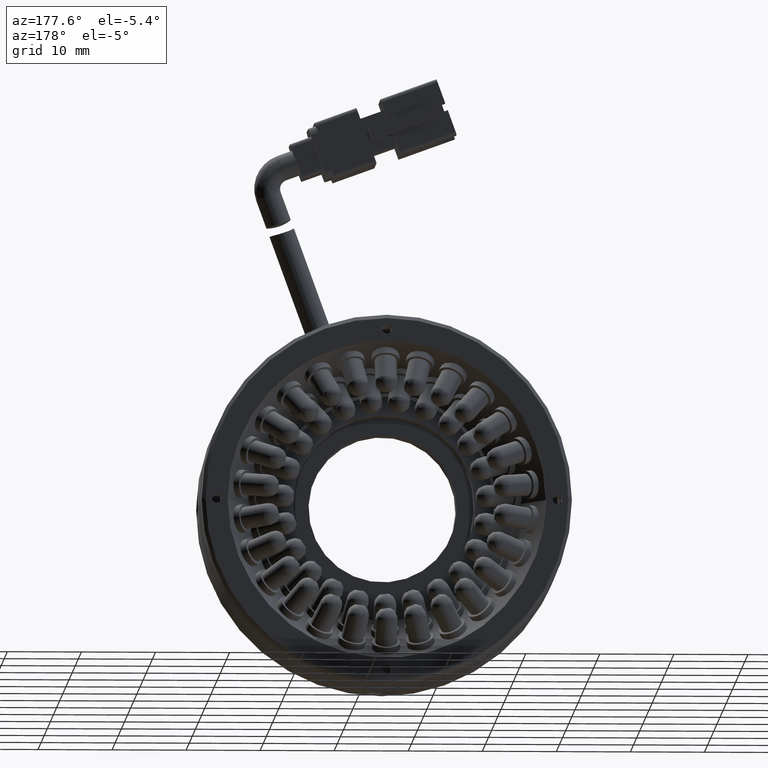
[diagram: clean part render]
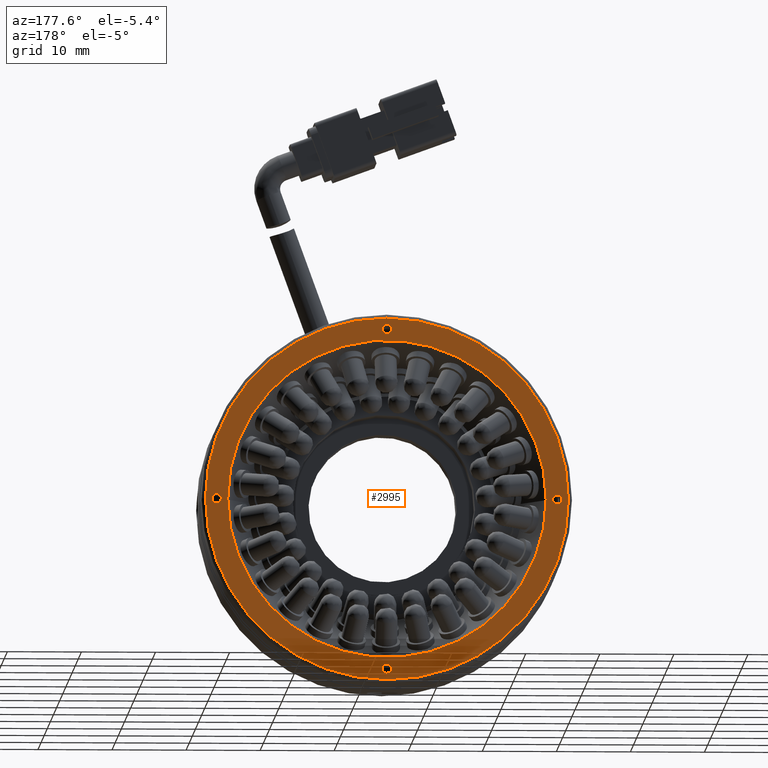
[diagram: same view with one face highlighted and labeled with its STEP entity id]
A machine part, auxiliary view. The second image highlights one B-rep face of the part: STEP entity #2995.
In plain terms, the highlighted planar face has unit normal (0, -1, 0).
Its self-contained STEP definition (entity closure, byte-faithful):
#528 = AXIS2_PLACEMENT_3D ( 'NONE', #32243, #8652, #36204 ) ;
#760 = VERTEX_POINT ( 'NONE', #28803 ) ;
#1111 = VERTEX_POINT ( 'NONE', #21407 ) ;
#1406 = CARTESIAN_POINT ( 'NONE',  ( -93.72635228848822900, 21.12753120665741900, -23.00000000000000000 ) ) ;
#2995 = ADVANCED_FACE ( 'NONE', ( #39938, #18928, #9789, #8481, #29488, #50145 ), #37236, .F. ) ;
#3200 = CIRCLE ( 'NONE', #22009, 0.6249999999999987800 ) ;
#5416 = DIRECTION ( 'NONE',  ( 0.0000000000000000000, 0.0000000000000000000, 1.000000000000000000 ) ) ;
#6185 = CARTESIAN_POINT ( 'NONE',  ( -93.72635228848822900, 21.12753120665741900, 1.734723475976778100E-017 ) ) ;
#6297 = DIRECTION ( 'NONE',  ( 1.040834085586084300E-016, -1.000000000000000000, -3.469446951953613600E-017 ) ) ;
#6337 = CIRCLE ( 'NONE', #48746, 0.6249999999999987800 ) ;
#6529 = DIRECTION ( 'NONE',  ( 0.0000000000000000000, 0.0000000000000000000, 1.000000000000000000 ) ) ;
#6701 = DIRECTION ( 'NONE',  ( 0.0000000000000000000, -1.000000000000000000, 0.0000000000000000000 ) ) ;
#6860 = CARTESIAN_POINT ( 'NONE',  ( -116.7263522884882400, 21.12753120665741900, 8.030407079339205500E-014 ) ) ;
#6880 = ORIENTED_EDGE ( 'NONE', *, *, #13075, .T. ) ;
#7035 = CARTESIAN_POINT ( 'NONE',  ( -69.22635228848821500, 21.12753120665742300, 1.734723475976778100E-017 ) ) ;
#7544 = CARTESIAN_POINT ( 'NONE',  ( -70.72635228848824300, 21.12753120665742700, -0.6250000000002397000 ) ) ;
#8378 = CIRCLE ( 'NONE', #24660, 0.6249999999999987800 ) ;
#8481 = FACE_BOUND ( 'NONE', #48564, .T. ) ;
#8652 = DIRECTION ( 'NONE',  ( 0.0000000000000000000, -1.000000000000000000, 0.0000000000000000000 ) ) ;
#9169 = CIRCLE ( 'NONE', #528, 0.6250000000000005600 ) ;
#9241 = CARTESIAN_POINT ( 'NONE',  ( -116.7263522884882400, 21.12753120665741900, 8.030407079339205500E-014 ) ) ;
#9532 = ORIENTED_EDGE ( 'NONE', *, *, #33196, .T. ) ;
#9789 = FACE_BOUND ( 'NONE', #42651, .T. ) ;
#10239 = DIRECTION ( 'NONE',  ( 1.000000000000000000, 1.416100796715759600E-016, 0.0000000000000000000 ) ) ;
#10504 = CIRCLE ( 'NONE', #49110, 0.6250000000000005600 ) ;
#10715 = CARTESIAN_POINT ( 'NONE',  ( -93.72635228848822900, 21.12753120665741900, 0.0000000000000000000 ) ) ;
#11659 = VERTEX_POINT ( 'NONE', #30950 ) ;
#11908 = CARTESIAN_POINT ( 'NONE',  ( -93.72635228848822900, 21.12753120665741900, -22.37500000000000000 ) ) ;
#13075 = EDGE_CURVE ( 'NONE', #46665, #43018, #24635, .T. ) ;
#13149 = DIRECTION ( 'NONE',  ( 0.0000000000000000000, 0.0000000000000000000, 1.000000000000000000 ) ) ;
#13234 = AXIS2_PLACEMENT_3D ( 'NONE', #36893, #36832, #36785 ) ;
#13326 = ORIENTED_EDGE ( 'NONE', *, *, #35627, .T. ) ;
#14392 = ORIENTED_EDGE ( 'NONE', *, *, #23505, .F. ) ;
#14632 = DIRECTION ( 'NONE',  ( -1.000000000000000000, -1.613696256722610900E-016, 0.0000000000000000000 ) ) ;
#14776 = EDGE_CURVE ( 'NONE', #38823, #39703, #17866, .T. ) ;
#15771 = ORIENTED_EDGE ( 'NONE', *, *, #38768, .T. ) ;
#16182 = CARTESIAN_POINT ( 'NONE',  ( -93.72635228848822900, 21.12753120665741900, 0.0000000000000000000 ) ) ;
#16607 = DIRECTION ( 'NONE',  ( 0.0000000000000000000, -1.000000000000000000, 0.0000000000000000000 ) ) ;
#16674 = VERTEX_POINT ( 'NONE', #7035 ) ;
#17151 = ORIENTED_EDGE ( 'NONE', *, *, #17196, .T. ) ;
#17171 = ORIENTED_EDGE ( 'NONE', *, *, #37728, .T. ) ;
#17196 = EDGE_CURVE ( 'NONE', #20239, #20840, #3200, .T. ) ;
#17866 = CIRCLE ( 'NONE', #31819, 0.6250000000000005600 ) ;
#18017 = CARTESIAN_POINT ( 'NONE',  ( -70.72635228848824300, 21.12753120665742700, -2.409122123801762900E-013 ) ) ;
#18928 = FACE_OUTER_BOUND ( 'NONE', #44452, .T. ) ;
#19741 = ORIENTED_EDGE ( 'NONE', *, *, #14776, .T. ) ;
#19882 = CIRCLE ( 'NONE', #22378, 0.6250000000000005600 ) ;
#20152 = DIRECTION ( 'NONE',  ( -1.000000000000000000, -1.613696256722610900E-016, 0.0000000000000000000 ) ) ;
#20239 = VERTEX_POINT ( 'NONE', #35456 ) ;
#20840 = VERTEX_POINT ( 'NONE', #23177 ) ;
#21407 = CARTESIAN_POINT ( 'NONE',  ( -93.72635228848822900, 21.12753120665741900, 23.62500000000000000 ) ) ;
#21990 = DIRECTION ( 'NONE',  ( 0.0000000000000000000, 0.0000000000000000000, 1.000000000000000000 ) ) ;
#22009 = AXIS2_PLACEMENT_3D ( 'NONE', #6860, #6701, #6529 ) ;
#22378 = AXIS2_PLACEMENT_3D ( 'NONE', #40279, #16607, #44133 ) ;
#23177 = CARTESIAN_POINT ( 'NONE',  ( -116.7263522884882400, 21.12753120665741900, 0.6250000000000791600 ) ) ;
#23505 = EDGE_CURVE ( 'NONE', #35671, #16674, #32771, .T. ) ;
#24635 = CIRCLE ( 'NONE', #48897, 0.6249999999999987800 ) ;
#24660 = AXIS2_PLACEMENT_3D ( 'NONE', #18017, #45524, #21990 ) ;
#26092 = DIRECTION ( 'NONE',  ( 0.0000000000000000000, 0.0000000000000000000, 1.000000000000000000 ) ) ;
#26257 = DIRECTION ( 'NONE',  ( 0.0000000000000000000, -1.000000000000000000, 0.0000000000000000000 ) ) ;
#26427 = CARTESIAN_POINT ( 'NONE',  ( -70.72635228848824300, 21.12753120665742700, -2.409122123801762900E-013 ) ) ;
#26475 = EDGE_CURVE ( 'NONE', #20840, #20239, #6337, .T. ) ;
#28803 = CARTESIAN_POINT ( 'NONE',  ( -93.72635228848822900, 21.12753120665741900, 22.37500000000000000 ) ) ;
#28993 = AXIS2_PLACEMENT_3D ( 'NONE', #6185, #33791, #10239 ) ;
#29082 = DIRECTION ( 'NONE',  ( 0.0000000000000000000, -1.000000000000000000, 0.0000000000000000000 ) ) ;
#29488 = FACE_BOUND ( 'NONE', #43171, .T. ) ;
#29983 = CARTESIAN_POINT ( 'NONE',  ( -93.72635228848822900, 21.12753120665741900, 1.734723475976778100E-017 ) ) ;
#30062 = AXIS2_PLACEMENT_3D ( 'NONE', #10715, #38252, #14632 ) ;
#30950 = CARTESIAN_POINT ( 'NONE',  ( -115.2263522884882400, 21.12753120665741600, 0.0000000000000000000 ) ) ;
#31165 = AXIS2_PLACEMENT_3D ( 'NONE', #16182, #43719, #20152 ) ;
#31819 = AXIS2_PLACEMENT_3D ( 'NONE', #40736, #40559, #40377 ) ;
#32160 = ORIENTED_EDGE ( 'NONE', *, *, #49766, .F. ) ;
#32243 = CARTESIAN_POINT ( 'NONE',  ( -93.72635228848822900, 21.12753120665741900, 23.00000000000000000 ) ) ;
#32771 = CIRCLE ( 'NONE', #40569, 24.50000000000002100 ) ;
#32817 = CARTESIAN_POINT ( 'NONE',  ( -72.22635228848822900, 21.12753120665742300, 2.632990618166810000E-015 ) ) ;
#33196 = EDGE_CURVE ( 'NONE', #760, #1111, #19882, .T. ) ;
#33791 = DIRECTION ( 'NONE',  ( 1.040834085586084300E-016, -1.000000000000000000, -3.469446951953613600E-017 ) ) ;
#33826 = CIRCLE ( 'NONE', #28993, 24.50000000000002100 ) ;
#33830 = ORIENTED_EDGE ( 'NONE', *, *, #40223, .F. ) ;
#33896 = DIRECTION ( 'NONE',  ( 1.000000000000000000, 1.416100796715759600E-016, 0.0000000000000000000 ) ) ;
#35066 = VERTEX_POINT ( 'NONE', #32817 ) ;
#35174 = ORIENTED_EDGE ( 'NONE', *, *, #46509, .F. ) ;
#35456 = CARTESIAN_POINT ( 'NONE',  ( -116.7263522884882400, 21.12753120665741900, -0.6249999999999185100 ) ) ;
#35627 = EDGE_CURVE ( 'NONE', #1111, #760, #9169, .T. ) ;
#35671 = VERTEX_POINT ( 'NONE', #40357 ) ;
#36204 = DIRECTION ( 'NONE',  ( 0.0000000000000000000, 0.0000000000000000000, 1.000000000000000000 ) ) ;
#36785 = DIRECTION ( 'NONE',  ( 1.000000000000000000, 1.224646799147351700E-016, 0.0000000000000000000 ) ) ;
#36786 = DIRECTION ( 'NONE',  ( 0.0000000000000000000, -1.000000000000000000, 0.0000000000000000000 ) ) ;
#36832 = DIRECTION ( 'NONE',  ( 1.224646799147351700E-016, -1.000000000000000000, 0.0000000000000000000 ) ) ;
#36893 = CARTESIAN_POINT ( 'NONE',  ( -68.72635228848822900, 21.12753120665742700, 0.0000000000000000000 ) ) ;
#37236 = PLANE ( 'NONE',  #13234 ) ;
#37728 = EDGE_CURVE ( 'NONE', #39703, #38823, #10504, .T. ) ;
#38252 = DIRECTION ( 'NONE',  ( -1.224646799147351700E-016, 1.000000000000000000, -0.0000000000000000000 ) ) ;
#38370 = CARTESIAN_POINT ( 'NONE',  ( -93.72635228848822900, 21.12753120665741900, -23.62500000000000000 ) ) ;
#38768 = EDGE_CURVE ( 'NONE', #43018, #46665, #8378, .T. ) ;
#38823 = VERTEX_POINT ( 'NONE', #38370 ) ;
#39643 = CARTESIAN_POINT ( 'NONE',  ( -70.72635228848824300, 21.12753120665742700, 0.6249999999997578600 ) ) ;
#39703 = VERTEX_POINT ( 'NONE', #11908 ) ;
#39938 = FACE_BOUND ( 'NONE', #44975, .T. ) ;
#40223 = EDGE_CURVE ( 'NONE', #35066, #11659, #46197, .T. ) ;
#40279 = CARTESIAN_POINT ( 'NONE',  ( -93.72635228848822900, 21.12753120665741900, 23.00000000000000000 ) ) ;
#40357 = CARTESIAN_POINT ( 'NONE',  ( -118.2263522884882600, 21.12753120665741600, 3.039674445269584900E-015 ) ) ;
#40377 = DIRECTION ( 'NONE',  ( 0.0000000000000000000, 0.0000000000000000000, 1.000000000000000000 ) ) ;
#40559 = DIRECTION ( 'NONE',  ( 0.0000000000000000000, -1.000000000000000000, 0.0000000000000000000 ) ) ;
#40569 = AXIS2_PLACEMENT_3D ( 'NONE', #29983, #6297, #33896 ) ;
#40736 = CARTESIAN_POINT ( 'NONE',  ( -93.72635228848822900, 21.12753120665741900, -23.00000000000000000 ) ) ;
#42651 = EDGE_LOOP ( 'NONE', ( #17171, #19741 ) ) ;
#42992 = CIRCLE ( 'NONE', #31165, 21.50000000000000400 ) ;
#43018 = VERTEX_POINT ( 'NONE', #39643 ) ;
#43171 = EDGE_LOOP ( 'NONE', ( #13326, #9532 ) ) ;
#43719 = DIRECTION ( 'NONE',  ( -1.224646799147351700E-016, 1.000000000000000000, -0.0000000000000000000 ) ) ;
#44133 = DIRECTION ( 'NONE',  ( 0.0000000000000000000, 0.0000000000000000000, 1.000000000000000000 ) ) ;
#44452 = EDGE_LOOP ( 'NONE', ( #35174, #14392 ) ) ;
#44938 = ORIENTED_EDGE ( 'NONE', *, *, #26475, .T. ) ;
#44975 = EDGE_LOOP ( 'NONE', ( #32160, #33830 ) ) ;
#45524 = DIRECTION ( 'NONE',  ( 0.0000000000000000000, -1.000000000000000000, 0.0000000000000000000 ) ) ;
#46197 = CIRCLE ( 'NONE', #30062, 21.50000000000000400 ) ;
#46259 = EDGE_LOOP ( 'NONE', ( #15771, #6880 ) ) ;
#46509 = EDGE_CURVE ( 'NONE', #16674, #35671, #33826, .T. ) ;
#46665 = VERTEX_POINT ( 'NONE', #7544 ) ;
#48564 = EDGE_LOOP ( 'NONE', ( #44938, #17151 ) ) ;
#48746 = AXIS2_PLACEMENT_3D ( 'NONE', #9241, #36786, #13149 ) ;
#48897 = AXIS2_PLACEMENT_3D ( 'NONE', #26427, #26257, #26092 ) ;
#49110 = AXIS2_PLACEMENT_3D ( 'NONE', #1406, #29082, #5416 ) ;
#49766 = EDGE_CURVE ( 'NONE', #11659, #35066, #42992, .T. ) ;
#50145 = FACE_BOUND ( 'NONE', #46259, .T. ) ;